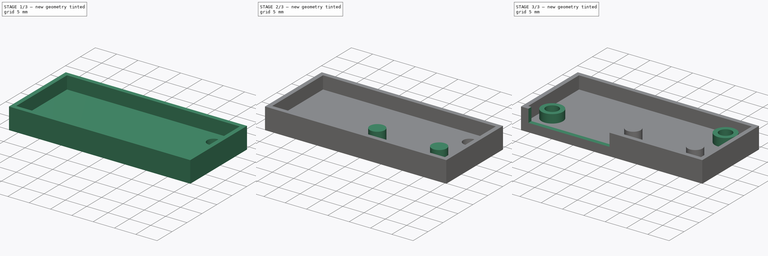
[diagram: build sequence overview — one tinted view per stage of 3, left to right]
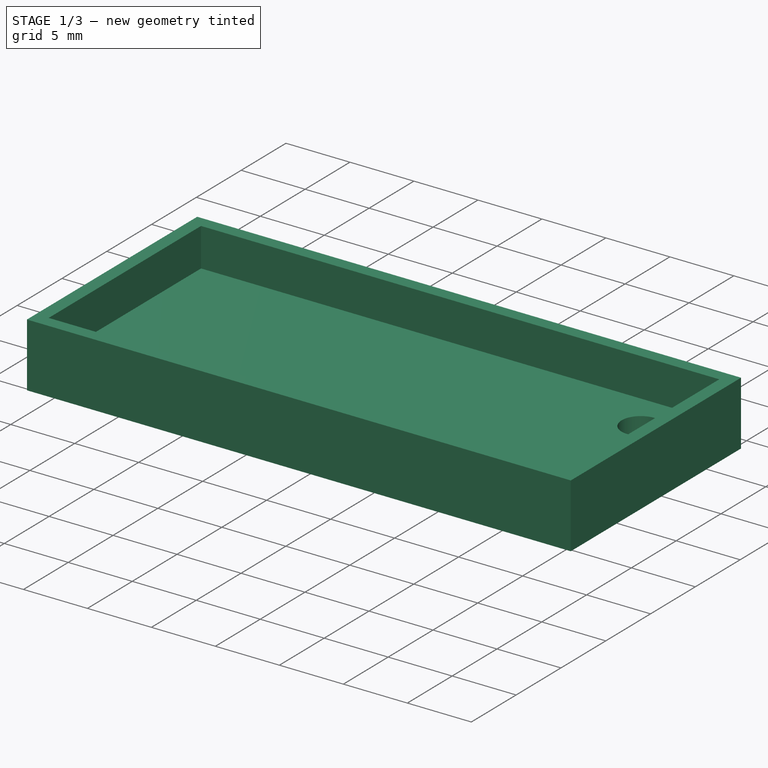
[diagram: stage 1 of 3 — iso view after this stage's code; geometry added in this stage tinted green]
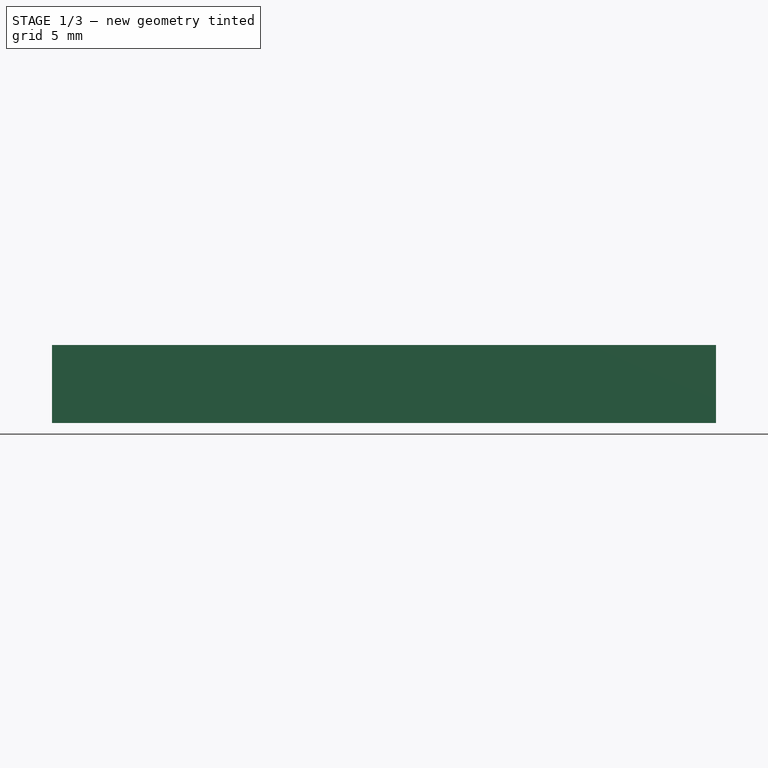
[diagram: stage 1 of 3 — front view after this stage's code; geometry added in this stage tinted green]
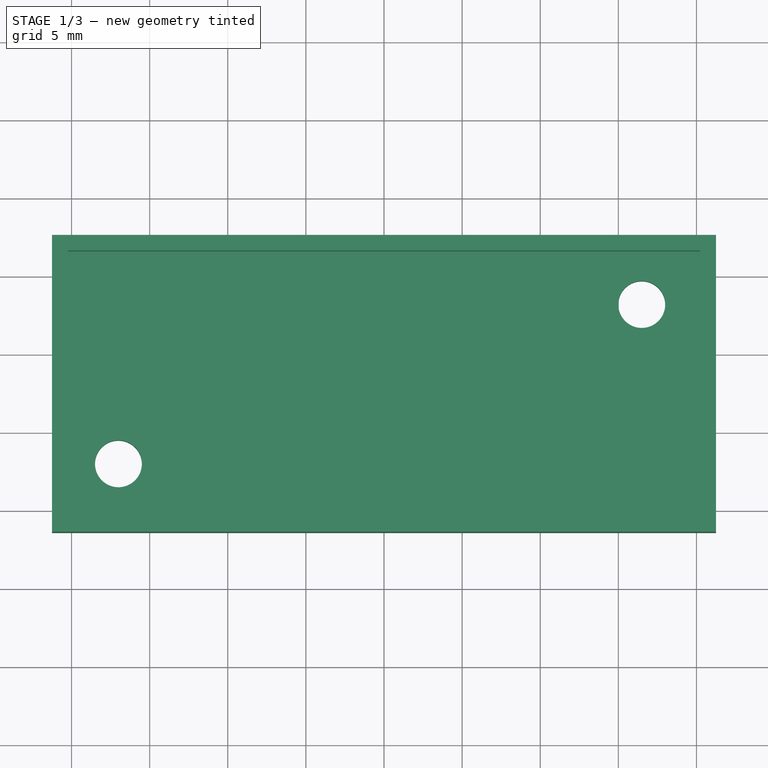
[diagram: stage 1 of 3 — top view after this stage's code; geometry added in this stage tinted green]
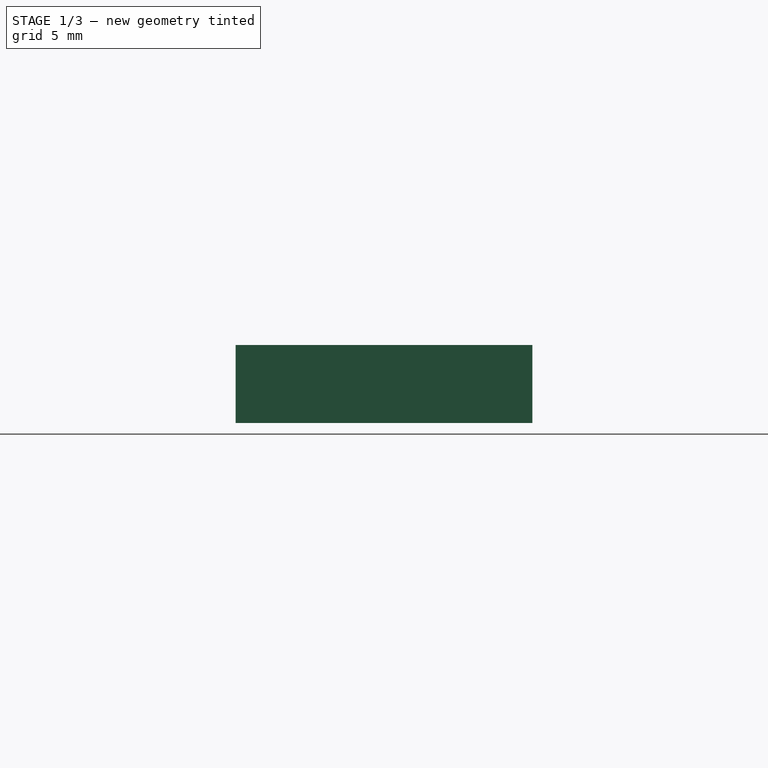
[diagram: stage 1 of 3 — right view after this stage's code; geometry added in this stage tinted green]
FCSTD DOCUMENT  (FreeCAD 0.19R23463 (Git))
Label: end_stop_base
License: All rights reserved
LicenseURL: http://en.wikipedia.org/wiki/All_rights_reserved
objects: Sketcher::SketchObject×6, PartDesign::Pad×4, PartDesign::Pocket×1, PartDesign::Body×1
note: 17 computed .brp shape members not serialized (recipe doc carries the construction recipe); baked Part::Feature solids carry a one-line shape summary decoded from their .brp

FEATURE [Sketcher::SketchObject] Sketch
  MapMode = 5
  Support = -> [XY_Plane]
  sketch-geometry (8):
    g0: LineSegment StartX=0 StartY=0 StartZ=0 EndX=40 EndY=0 EndZ=0
    g1: LineSegment StartX=40 StartY=0 StartZ=0 EndX=40 EndY=16.2 EndZ=0
    g2: LineSegment StartX=40 StartY=16.2 StartZ=0 EndX=0 EndY=16.2 EndZ=0
    g3: LineSegment StartX=0 StartY=16.2 StartZ=0 EndX=0 EndY=0 EndZ=0
    g4: Circle CenterX=3 CenterY=3 CenterZ=0 NormalX=0 NormalY=0 NormalZ=1 AngleXU=0 Radius=2
    g5: Circle CenterX=36.5 CenterY=3 CenterZ=0 NormalX=0 NormalY=0 NormalZ=1 AngleXU=0 Radius=2
    g6: Circle CenterX=36.5 CenterY=13.2 CenterZ=0 NormalX=0 NormalY=0 NormalZ=1 AngleXU=0 Radius=2
    g7: Circle CenterX=22 CenterY=3 CenterZ=0 NormalX=0 NormalY=0 NormalZ=1 AngleXU=0 Radius=2
  constraints (23):
    c: Coincident(g0,g1)
    c: Coincident(g1,g2)
    c: Coincident(g2,g3)
    c: Coincident(g3,g0)
    c: Horizontal(g0)
    c: Horizontal(g2)
    c: Vertical(g1)
    c: Vertical(g3)
    c: Coincident(g0,g-1)
    c: DistanceY(g1,g1) = 16.2
    c: Radius(g4) = 2
    c: Equal(g4,g5) = 2
    c: Equal(g5,g6)
    c: Equal(g7,g6)
    c: Horizontal(g7,g4)
    c: Horizontal(g4,g5)
    c: Vertical(g5,g6)
    c: DistanceX(g0,g4) = 3
    c: DistanceY(g0,g4) = 3
    c: DistanceX(g5,g0) = 3.5
    c: DistanceY(g6,g1) = 3
    c: DistanceX(g7,g5) = 14.5
    c: DistanceX(g4,g7) = 19
FEATURE [Sketcher::SketchObject] Sketch001
  ExternalGeometry = -> [Sketch]
  MapMode = 5
  Support = -> [XY_Plane]
  sketch-geometry (10):
    g0: LineSegment StartX=40.25 StartY=16.6 StartZ=0 EndX=-0.25 EndY=16.6 EndZ=0
    g1: LineSegment StartX=-0.25 StartY=16.6 StartZ=0 EndX=-0.25 EndY=-0.4 EndZ=0
    g2: LineSegment StartX=-0.25 StartY=-0.4 StartZ=0 EndX=40.25 EndY=-0.4 EndZ=0
    g3: LineSegment StartX=40.25 StartY=-0.4 StartZ=0 EndX=40.25 EndY=16.6 EndZ=0
    g4: LineSegment StartX=-1.25 StartY=17.6 StartZ=0 EndX=41.25 EndY=17.6 EndZ=0
    g5: LineSegment StartX=41.25 StartY=17.6 StartZ=0 EndX=41.25 EndY=-1.4 EndZ=0
    g6: LineSegment StartX=41.25 StartY=-1.4 StartZ=0 EndX=-1.25 EndY=-1.4 EndZ=0
    g7: LineSegment StartX=-1.25 StartY=-1.4 StartZ=0 EndX=-1.25 EndY=17.6 EndZ=0
    g8: LineSegment StartX=40.25 StartY=-0.4 StartZ=0 EndX=41.25 EndY=-1.4 EndZ=0
    g9: LineSegment StartX=-1.25 StartY=17.6 StartZ=0 EndX=-0.25 EndY=16.6 EndZ=0
  constraints (28):
    c: Coincident(g0,g1)
    c: Coincident(g1,g2)
    c: Coincident(g2,g3)
    c: Coincident(g3,g0)
    c: Horizontal(g0)
    c: Horizontal(g2)
    c: Vertical(g1)
    c: Vertical(g3)
    c: DistanceX(g-3,g0) = 0.25
    c: DistanceX(g1,g-1) = 0.25
    c: DistanceY(g-3,g0) = 0.4
    c: DistanceY(g1,g-1) = 0.4
    c: Coincident(g4,g5)
    c: Coincident(g5,g6)
    c: Coincident(g6,g7)
    c: Coincident(g7,g4)
    c: Horizontal(g4)
    c: Horizontal(g6)
    c: Vertical(g5)
    c: Vertical(g7)
    c: Coincident(g8,g2)
    c: Coincident(g8,g5)
    c: DistanceX(g8,g8) = 1
    c: DistanceY(g8,g8) = 1
    c: Coincident(g9,g4)
    c: Coincident(g9,g0)
    c: DistanceX(g9,g9) = 1
    c: DistanceY(g9,g9) = 1
FEATURE [PartDesign::Pad] Pad
  Direction = (1,1,1)
  Length = 3
  Length2 = 100
  Profile = -> Sketch001
  Type = 0
FEATURE [Sketcher::SketchObject] Sketch002
  ExternalGeometry = -> [Sketch001,Sketch]
  MapMode = 5
  Support = -> [XY_Plane]
  sketch-geometry (6):
    g0: LineSegment StartX=-1.25 StartY=17.6 StartZ=0 EndX=41.25 EndY=17.6 EndZ=0
    g1: LineSegment StartX=41.25 StartY=17.6 StartZ=0 EndX=41.25 EndY=-1.4 EndZ=0
    g2: LineSegment StartX=41.25 StartY=-1.4 StartZ=0 EndX=-1.25 EndY=-1.4 EndZ=0
    g3: LineSegment StartX=-1.25 StartY=-1.4 StartZ=0 EndX=-1.25 EndY=17.6 EndZ=0
    g4: Circle CenterX=3 CenterY=3 CenterZ=0 NormalX=0 NormalY=0 NormalZ=1 AngleXU=0 Radius=1.5
    g5: Circle CenterX=36.5 CenterY=13.2 CenterZ=0 NormalX=0 NormalY=0 NormalZ=1 AngleXU=0 Radius=1.5
  constraints (14):
    c: Coincident(g0,g1)
    c: Coincident(g1,g2)
    c: Coincident(g2,g3)
    c: Coincident(g3,g0)
    c: Horizontal(g0)
    c: Horizontal(g2)
    c: Vertical(g1)
    c: Vertical(g3)
    c: Coincident(g0,g-3)
    c: Coincident(g1,g-4)
    c: Coincident(g4,g-5)
    c: Coincident(g5,g-6)
    c: Equal(g4,g5)
    c: Diameter(g5) = 3
FEATURE [PartDesign::Pad] Pad001
  BaseFeature = -> Pad
  Direction = (1,1,1)
  Length = 2
  Length2 = 100
  Profile = -> Sketch002
  Reversed = true
  Type = 0
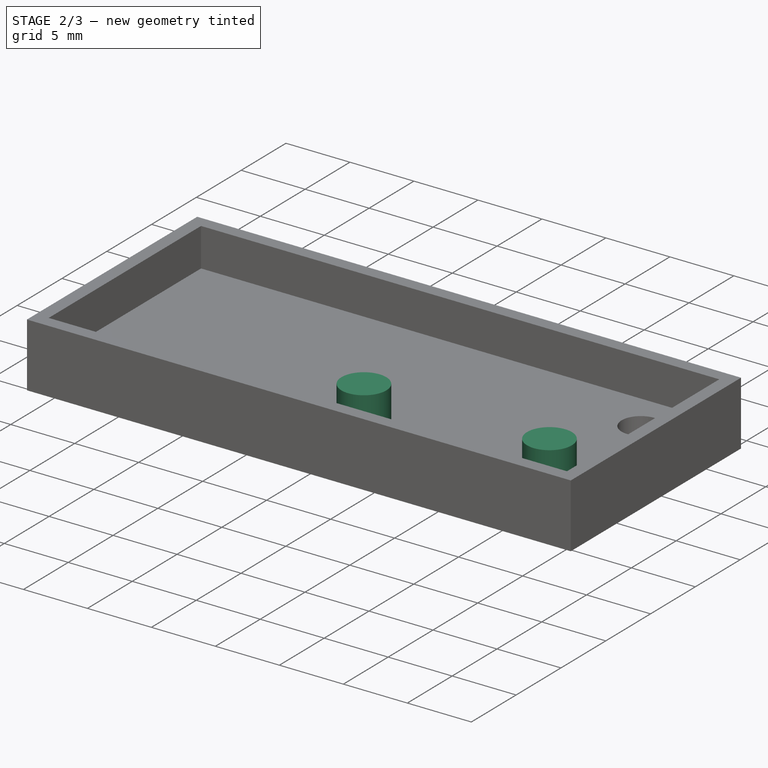
[diagram: stage 2 of 3 — iso view after this stage's code; geometry added in this stage tinted green]
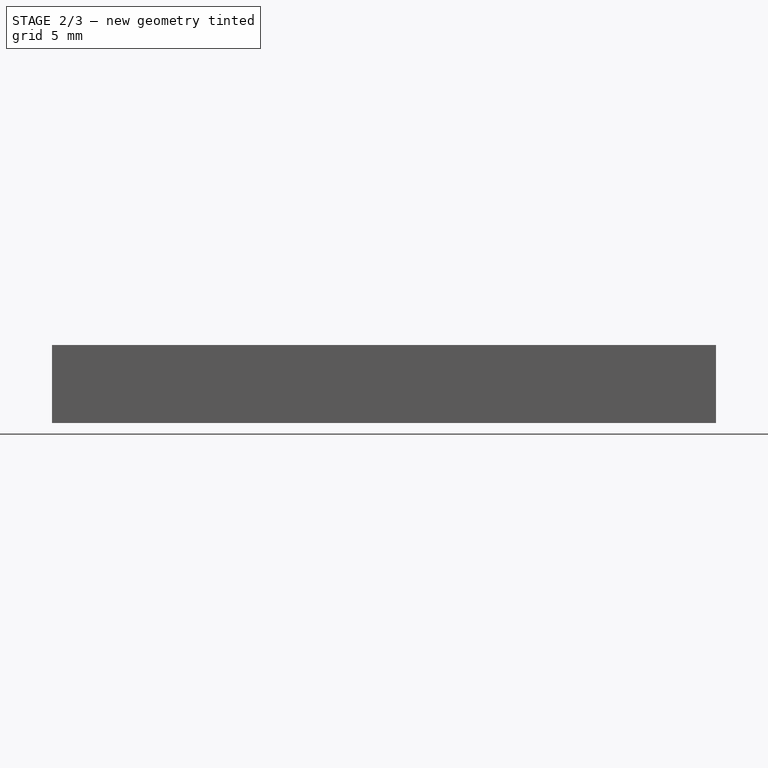
[diagram: stage 2 of 3 — front view after this stage's code; geometry added in this stage tinted green]
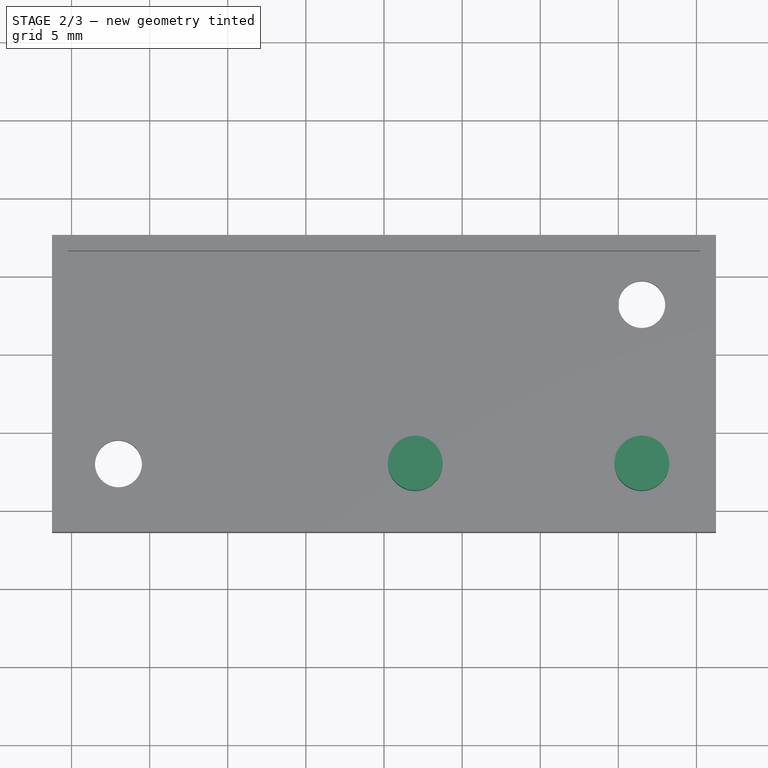
[diagram: stage 2 of 3 — top view after this stage's code; geometry added in this stage tinted green]
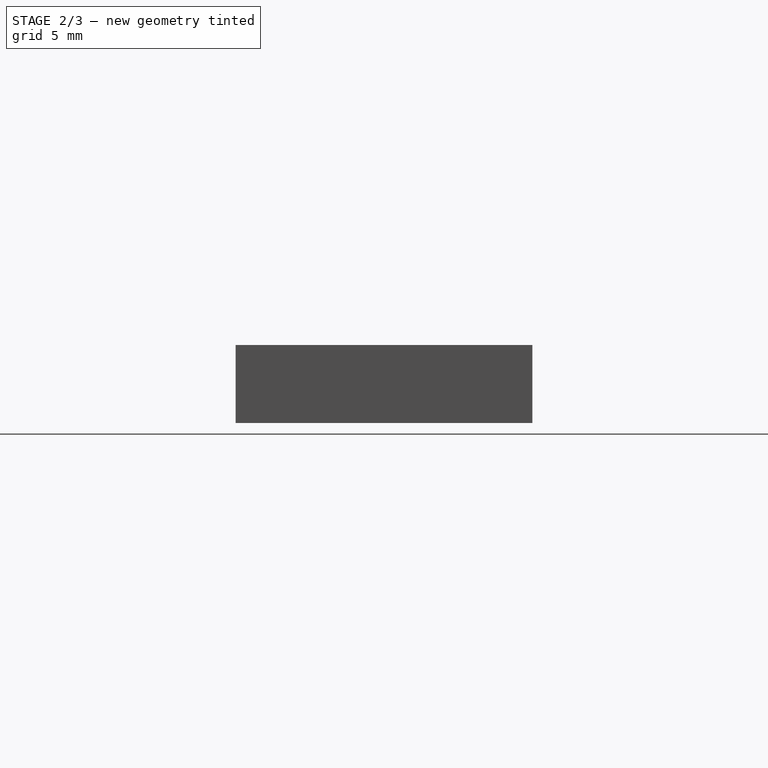
[diagram: stage 2 of 3 — right view after this stage's code; geometry added in this stage tinted green]
FEATURE [Sketcher::SketchObject] Sketch003
  ExternalGeometry = -> [Sketch]
  MapMode = 5
  Support = -> [XY_Plane]
  sketch-geometry (6):
    g0: Circle CenterX=22 CenterY=3 CenterZ=0 NormalX=0 NormalY=0 NormalZ=1 AngleXU=0 Radius=1.75
    g1: Circle CenterX=36.5 CenterY=3 CenterZ=0 NormalX=0 NormalY=0 NormalZ=1 AngleXU=0 Radius=1.75
    g2: Circle CenterX=3 CenterY=3 CenterZ=0 NormalX=0 NormalY=0 NormalZ=1 AngleXU=0 Radius=1.75
    g3: Circle CenterX=3 CenterY=3 CenterZ=0 NormalX=0 NormalY=0 NormalZ=1 AngleXU=0 Radius=2.5
    g4: Circle CenterX=36.5 CenterY=13.2 CenterZ=0 NormalX=0 NormalY=0 NormalZ=1 AngleXU=0 Radius=1.75
    g5: Circle CenterX=36.5 CenterY=13.2 CenterZ=0 NormalX=0 NormalY=0 NormalZ=1 AngleXU=0 Radius=2.5
  constraints (12):
    c: Coincident(g0,g-4)
    c: Coincident(g1,g-5)
    c: Equal(g0,g1)
    c: Diameter(g0) = 3.5
    c: Equal(g0,g2) = 3.5
    c: Coincident(g-3,g2)
    c: Coincident(g3,g2)
    c: Diameter(g3) = 5
    c: Equal(g0,g4) = 3.5
    c: Equal(g3,g5) = 5
    c: Coincident(g4,g5)
    c: Coincident(g4,g-6)
FEATURE [PartDesign::Pad] Pad002
  BaseFeature = -> Pad001
  Direction = (1,1,1)
  Length = 3
  Length2 = 100
  Profile = -> Sketch003
  Type = 0
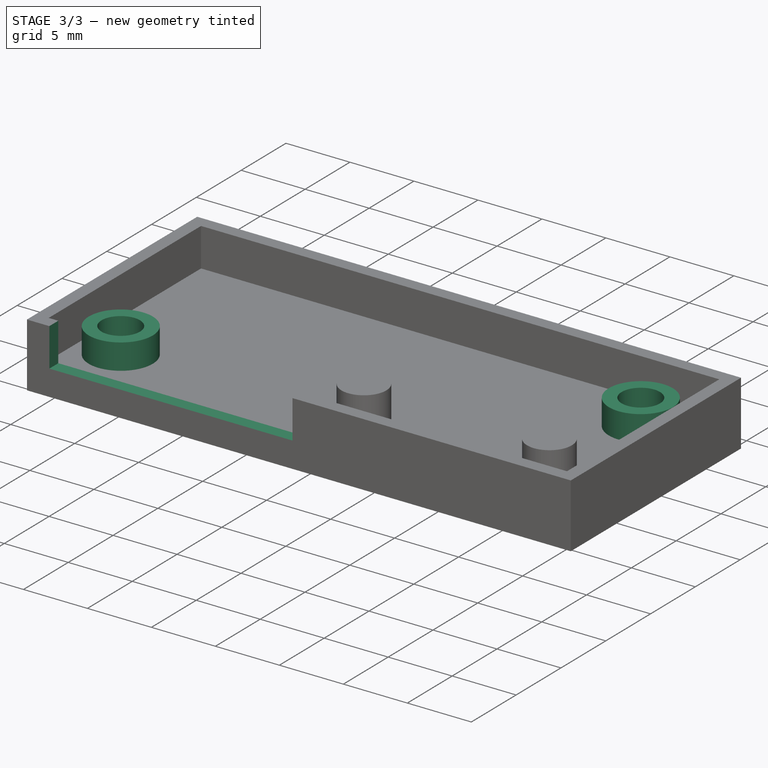
[diagram: stage 3 of 3 — iso view after this stage's code; geometry added in this stage tinted green]
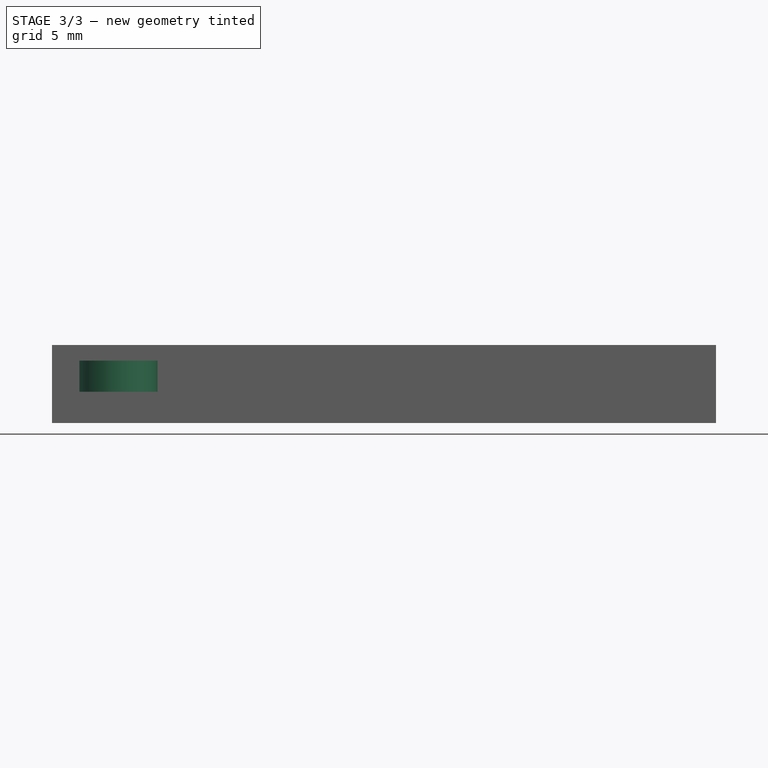
[diagram: stage 3 of 3 — front view after this stage's code; geometry added in this stage tinted green]
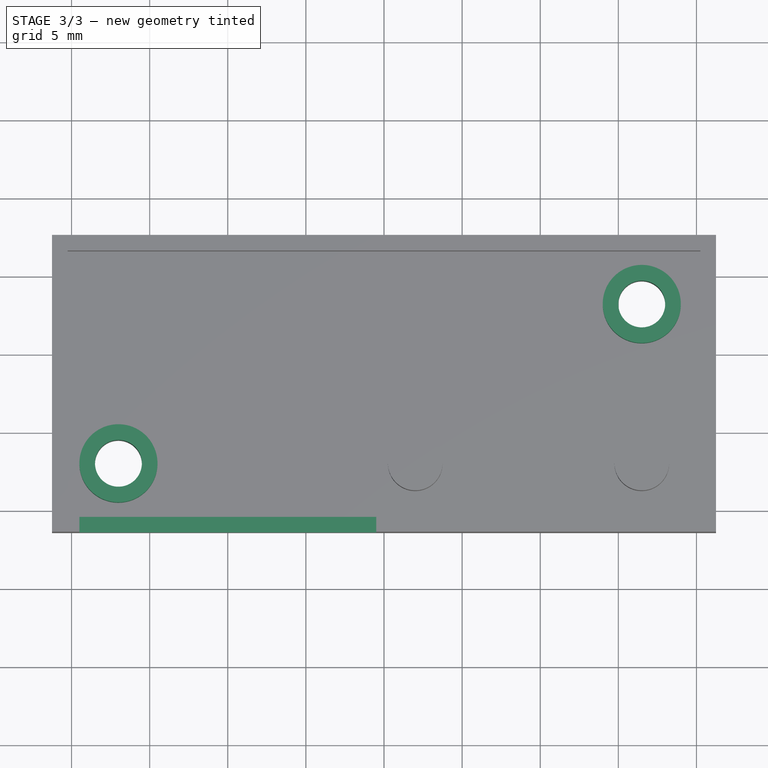
[diagram: stage 3 of 3 — top view after this stage's code; geometry added in this stage tinted green]
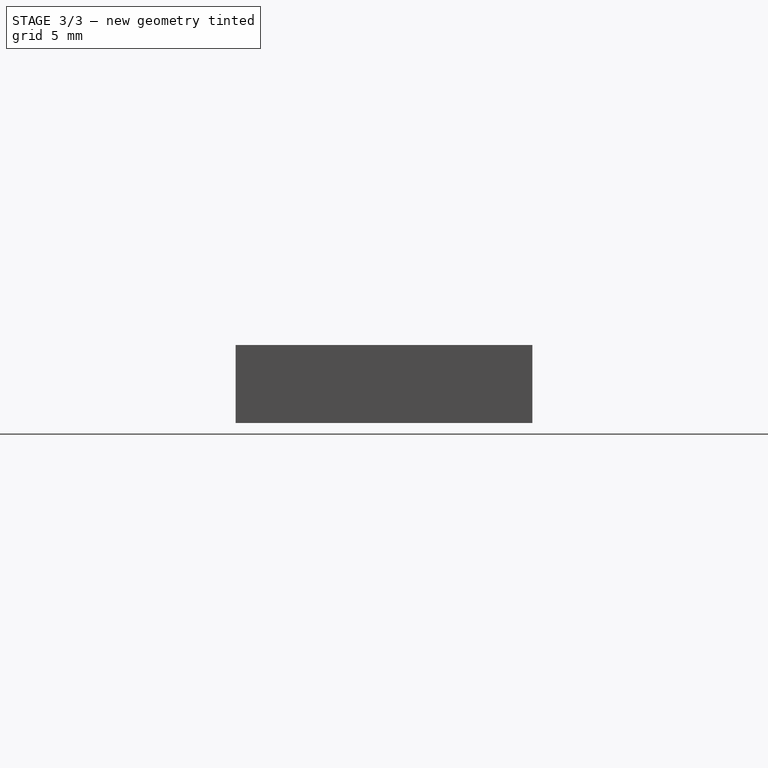
[diagram: stage 3 of 3 — right view after this stage's code; geometry added in this stage tinted green]
FEATURE [Sketcher::SketchObject] Sketch004
  ExternalGeometry = -> [Sketch002,Sketch]
  MapMode = 5
  Support = -> [XY_Plane]
  sketch-geometry (17):
    g0: LineSegment StartX=5.5 StartY=7 StartZ=0 EndX=19.5 EndY=7 EndZ=0
    g1: LineSegment StartX=19.5 StartY=7 StartZ=0 EndX=19.5 EndY=0 EndZ=0
    g2: LineSegment StartX=19.5 StartY=0 StartZ=0 EndX=5.5 EndY=0 EndZ=0
    g3: LineSegment StartX=5.5 StartY=0 StartZ=0 EndX=5.5 EndY=7 EndZ=0
    g4: LineSegment StartX=5.5 StartY=0 StartZ=0 EndX=5.5 EndY=-1.4 EndZ=0
    g5: LineSegment StartX=5.5 StartY=-1.4 StartZ=0 EndX=19.5 EndY=-1.4 EndZ=0
    g6: LineSegment StartX=19.5 StartY=-1.4 StartZ=0 EndX=19.5 EndY=0 EndZ=0
    g7: LineSegment StartX=5.5 StartY=-1.4 StartZ=0 EndX=0.5 EndY=-1.4 EndZ=0
    g8: LineSegment StartX=0.5 StartY=7 StartZ=0 EndX=5.5 EndY=7 EndZ=0
    g9: LineSegment StartX=5.5 StartY=7 StartZ=0 EndX=19.5 EndY=0 EndZ=0
    g10: LineSegment StartX=19.5 StartY=7 StartZ=0 EndX=5.5 EndY=0 EndZ=0
    g11: LineSegment StartX=12.5 StartY=7 StartZ=0 EndX=12.5 EndY=0 EndZ=0
    g12: GeomPoint X=12.5 Y=3 Z=0
    g13: GeomPoint X=12.5 Y=3.5 Z=0
    g14: LineSegment StartX=0.5 StartY=0 StartZ=0 EndX=5.5 EndY=0 EndZ=0
    g15: LineSegment StartX=0.5 StartY=7 StartZ=0 EndX=0.5 EndY=0 EndZ=0
    g16: LineSegment StartX=0.5 StartY=0 StartZ=0 EndX=0.5 EndY=-1.4 EndZ=0
  constraints (44):
    c: Coincident(g0,g1)
    c: Coincident(g1,g2)
    c: Coincident(g2,g3)
    c: Coincident(g3,g0)
    c: Horizontal(g0)
    c: Horizontal(g2)
    c: Vertical(g1)
    c: Vertical(g3)
    c: DistanceX(g2,g2) = 14
    c: PointOnObject(g2,g-1)
    c: DistanceY(g1,g1) = 7
    c: Coincident(g3,g4)
    c: Vertical(g4)
    c: Coincident(g4,g5)
    c: Horizontal(g5)
    c: Coincident(g5,g6)
    c: Vertical(g6)
    c: Coincident(g6,g1)
    c: PointOnObject(g5,g-3)
    c: Coincident(g5,g7)
    c: PointOnObject(g7,g-3)
    c: Coincident(g8,g0)
    c: Horizontal(g8)
    c: DistanceX(g7,g7) = 5
    c: Coincident(g9,g0)
    c: Coincident(g9,g1)
    c: Coincident(g10,g0)
    c: Coincident(g10,g2)
    c: PointOnObject(g11,g0)
    c: PointOnObject(g11,g2)
    c: Vertical(g11)
    c: PointOnObject(g12,g11)
    c: Symmetric(g-4,g-5,g12)
    c: PointOnObject(g13,g10)
    c: PointOnObject(g13,g9)
    c: PointOnObject(g13,g11)
    c: Coincident(g14,g2)
    c: Horizontal(g14)
    c: Coincident(g15,g8)
    c: Coincident(g15,g14)
    c: Vertical(g15)
    c: Coincident(g16,g14)
    c: Coincident(g16,g7)
    c: Vertical(g16)
FEATURE [PartDesign::Pocket] Pocket
  BaseFeature = -> Pad002
  Length = 5
  Length2 = 100
  Profile = -> Sketch004
  Reversed = true
  Type = 1
FEATURE [Sketcher::SketchObject] Sketch005
  ExternalGeometry = -> [Sketch]
  MapMode = 5
  Support = -> [XY_Plane]
  sketch-geometry (4):
    g0: Circle CenterX=3 CenterY=3 CenterZ=0 NormalX=0 NormalY=0 NormalZ=1 AngleXU=0 Radius=1.5
    g1: Circle CenterX=3 CenterY=3 CenterZ=0 NormalX=0 NormalY=0 NormalZ=1 AngleXU=0 Radius=2.5
    g2: Circle CenterX=36.5 CenterY=13.2 CenterZ=0 NormalX=0 NormalY=0 NormalZ=1 AngleXU=0 Radius=1.5
    g3: Circle CenterX=36.5 CenterY=13.2 CenterZ=0 NormalX=0 NormalY=0 NormalZ=1 AngleXU=0 Radius=2.5
  constraints (8):
    c: Coincident(g0,g-3)
    c: Coincident(g1,g0)
    c: Diameter(g1) = 5
    c: Diameter(g0) = 3
    c: Equal(g0,g2) = 3
    c: Equal(g1,g3) = 5
    c: Coincident(g2,g3)
    c: Coincident(g2,g-4)
FEATURE [PartDesign::Pad] Pad003
  BaseFeature = -> Pocket
  Direction = (1,1,1)
  Length = 2
  Length2 = 100
  Profile = -> Sketch005
  Type = 0
FEATURE [PartDesign::Body] Body
  Group = -> [Sketch,Sketch001,Pad,Sketch002,Pad001,Sketch003,Pad002,Sketch004,Pocket,Sketch005,Pad003]
  Origin = -> Origin
  Tip = -> Pad003
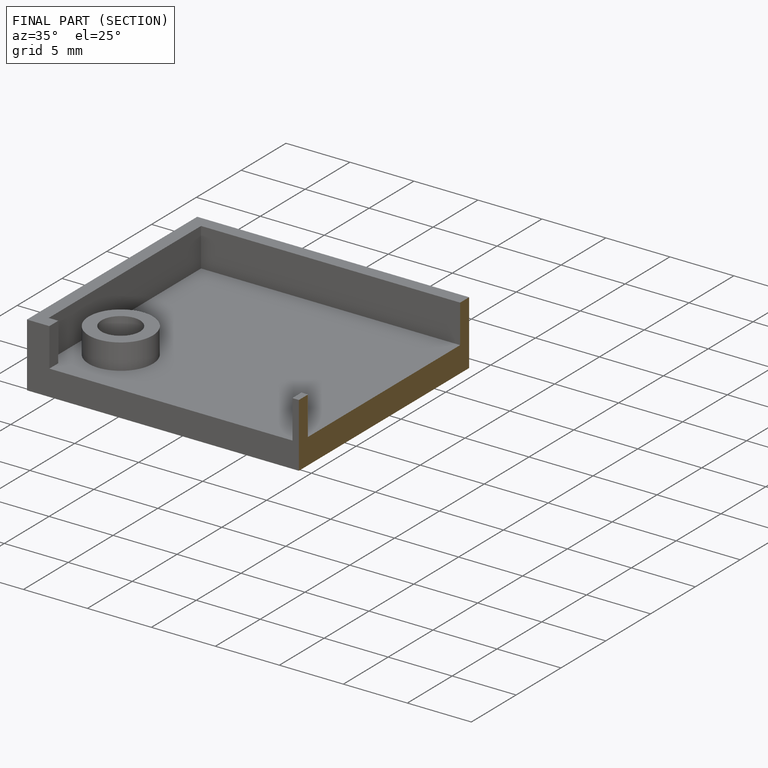
[diagram: finished part — half-section view (interior)]
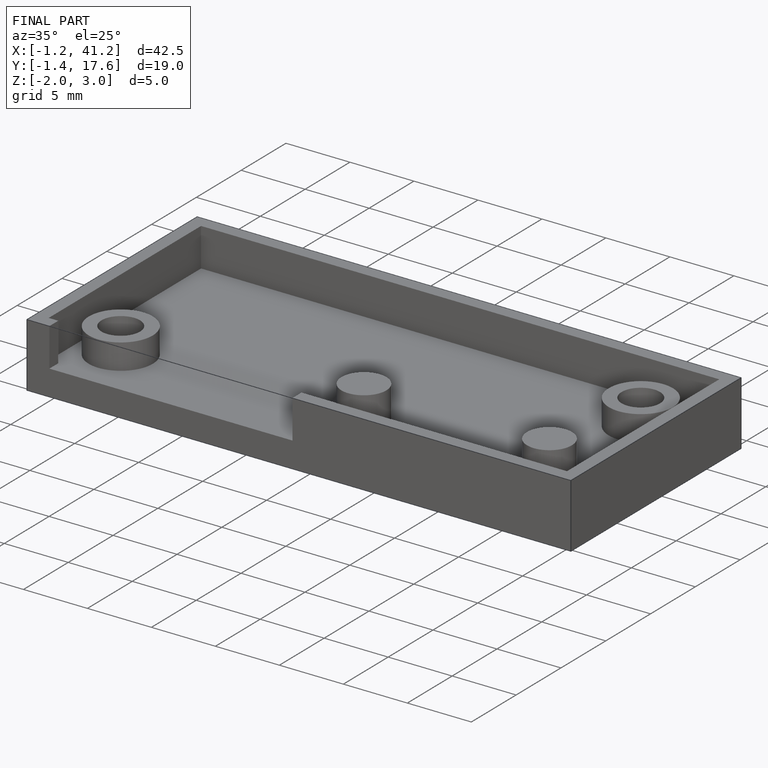
[diagram: finished part — iso view with bounding-box wireframe]
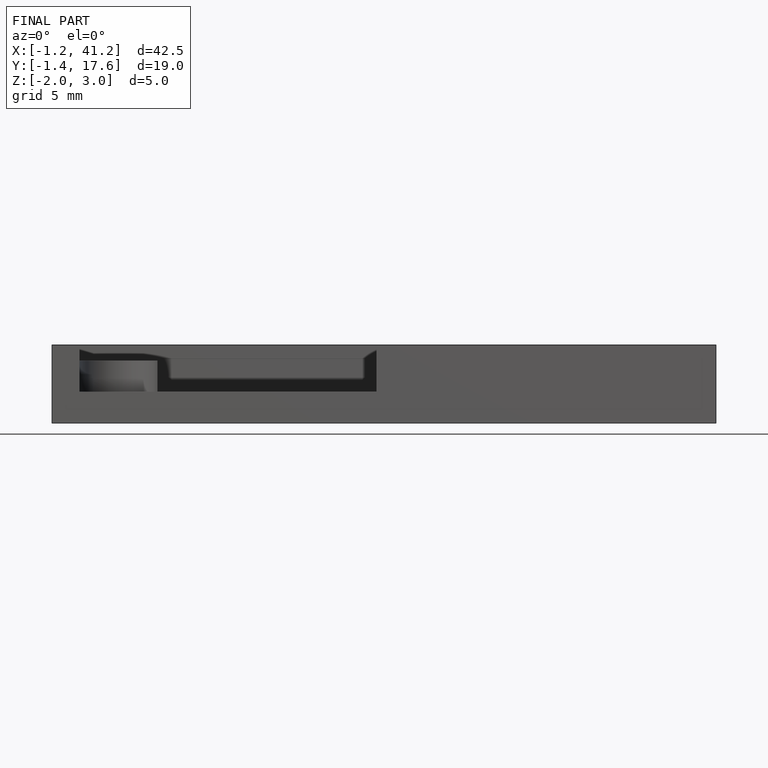
[diagram: finished part — front view with bounding-box wireframe]
